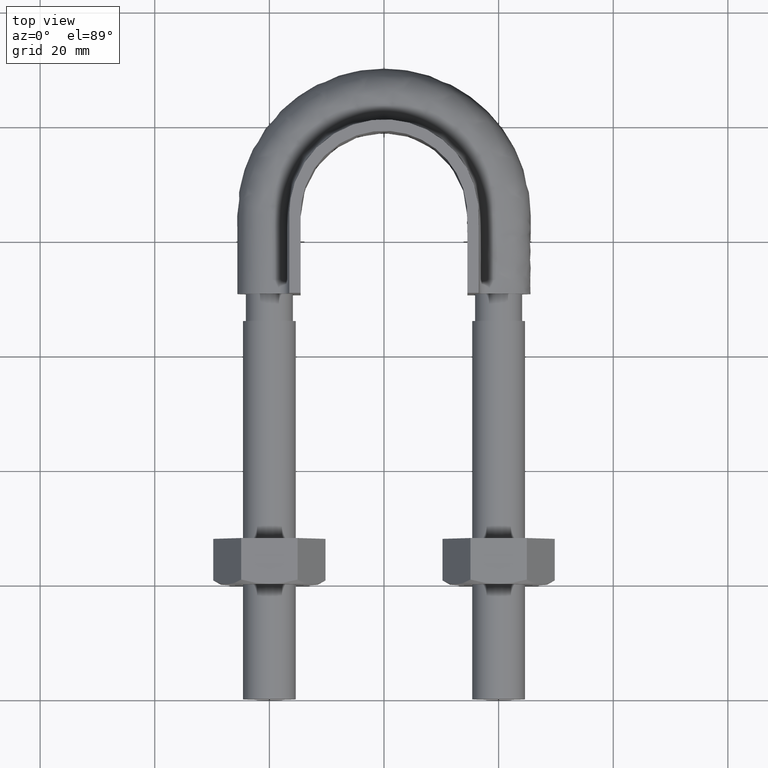
[diagram: clean part render]
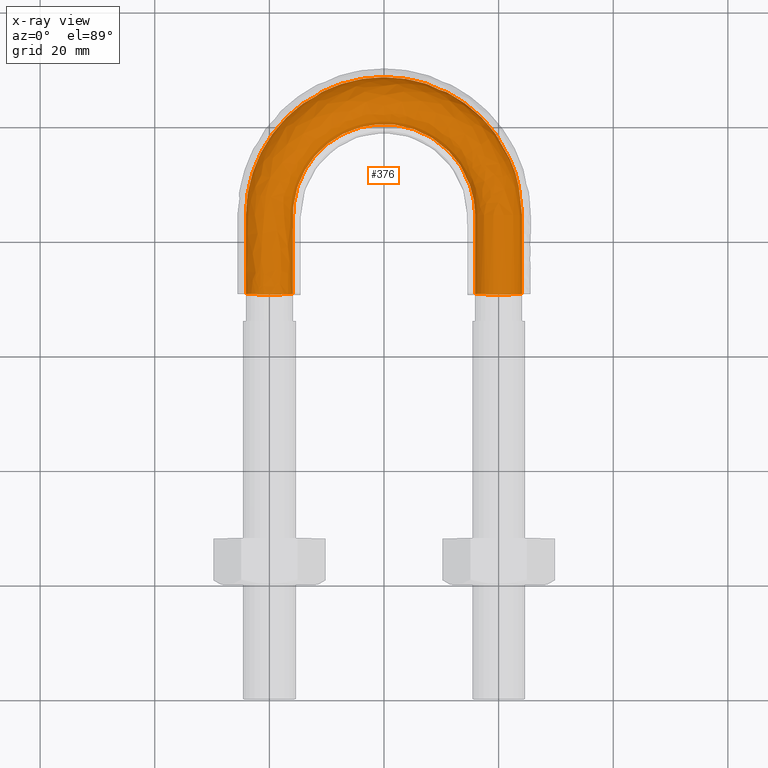
[diagram: x-ray — body ghosted, one internal face saturated and labeled with its STEP entity id]
A machine part, top view, then the same camera in x-ray: the body is ghosted and one INTERNAL B-rep face — a face not visible from any outside direction — is saturated and labeled: STEP entity #376.
In plain terms, the highlighted face is a freeform B-spline surface patch.
Its self-contained STEP definition (entity closure, byte-faithful):
#376 = ADVANCED_FACE( '', ( #468, #469 ), #470, .T. );
#468 = FACE_OUTER_BOUND( '', #1287, .T. );
#469 = FACE_OUTER_BOUND( '', #1288, .T. );
#470 = B_SPLINE_SURFACE_WITH_KNOTS( '', 3, 3, ( ( #1289, #1290, #1291, #1292, #1293, #1294, #1295, #1296, #1297, #1298, #1299, #1300, #1301, #1302, #1303, #1304 ), ( #1305, #1306, #1307, #1308, #1309, #1310, #1311, #1312, #1313, #1314, #1315, #1316, #1317, #1318, #1319, #1320 ), ( #1321, #1322, #1323, #1324, #1325, #1326, #1327, #1328, #1329, #1330, #1331, #1332, #1333, #1334, #1335, #1336 ), ( #1337, #1338, #1339, #1340, #1341, #1342, #1343, #1344, #1345, #1346, #1347, #1348, #1349, #1350, #1351, #1352 ), ( #1353, #1354, #1355, #1356, #1357, #1358, #1359, #1360, #1361, #1362, #1363, #1364, #1365, #1366, #1367, #1368 ), ( #1369, #1370, #1371, #1372, #1373, #1374, #1375, #1376, #1377, #1378, #1379, #1380, #1381, #1382, #1383, #1384 ), ( #1385, #1386, #1387, #1388, #1389, #1390, #1391, #1392, #1393, #1394, #1395, #1396, #1397, #1398, #1399, #1400 ), ( #1401, #1402, #1403, #1404, #1405, #1406, #1407, #1408, #1409, #1410, #1411, #1412, #1413, #1414, #1415, #1416 ), ( #1417, #1418, #1419, #1420, #1421, #1422, #1423, #1424, #1425, #1426, #1427, #1428, #1429, #1430, #1431, #1432 ), ( #1433, #1434, #1435, #1436, #1437, #1438, #1439, #1440, #1441, #1442, #1443, #1444, #1445, #1446, #1447, #1448 ) ), .UNSPECIFIED., .T., .F., .F., ( 2, 1, 1, 1, 1, 1, 1, 1, 1, 1, 1, 2 ), ( 4, 3, 1, 1, 1, 1, 1, 1, 3, 4 ), ( -0.285714285714286, -0.142857142857143, 0.000000000000000, 0.142857142857143, 0.285714285714286, 0.428571428571429, 0.571428571428571, 0.714285714285714, 0.857142857142857, 1.00000000000000, 1.14285714285714, 1.28571428571429 ), ( 0.000000000000000, 1.00000000000000, 1.50000000000000, 2.00000000000000, 3.00000000000000, 4.00000000000000, 5.00000000000000, 5.50000000000000, 6.00000000000000, 7.00000000000000 ), .UNSPECIFIED. );
#1287 = EDGE_LOOP( '', ( #1670, #1671, #1672, #1673, #1674, #1675, #1676 ) );
#1288 = EDGE_LOOP( '', ( #1677 ) );
#1289 = CARTESIAN_POINT( '', ( 17.0768231851220, 68.3700000000000, -3.66554778583225 ) );
#1290 = CARTESIAN_POINT( '', ( 17.0768231851220, 73.7366666666667, -3.66554778583225 ) );
#1291 = CARTESIAN_POINT( '', ( 17.0768231851220, 79.1033333333333, -3.66554778583225 ) );
#1292 = CARTESIAN_POINT( '', ( 17.0768231851220, 84.4700000000000, -3.66554778583225 ) );
#1293 = CARTESIAN_POINT( '', ( 17.0768231851220, 86.2458952276886, -3.66554778583225 ) );
#1294 = CARTESIAN_POINT( '', ( 16.4940506041925, 89.8341044421144, -3.66554778583225 ) );
#1295 = CARTESIAN_POINT( '', ( 13.2362336290777, 96.2918023077660, -3.66554778583225 ) );
#1296 = CARTESIAN_POINT( '', ( 5.63524681783561, 101.815829382846, -3.66554778583225 ) );
#1297 = CARTESIAN_POINT( '', ( -5.63524681783558, 101.815829382846, -3.66554778583225 ) );
#1298 = CARTESIAN_POINT( '', ( -13.2362336290776, 96.2918023077660, -3.66554778583225 ) );
#1299 = CARTESIAN_POINT( '', ( -16.4940506041925, 89.8341044421144, -3.66554778583225 ) );
#1300 = CARTESIAN_POINT( '', ( -17.0768231851219, 86.2458952276886, -3.66554778583225 ) );
#1301 = CARTESIAN_POINT( '', ( -17.0768231851219, 84.4700000000000, -3.66554778583225 ) );
#1302 = CARTESIAN_POINT( '', ( -17.0768231851219, 79.1033333333333, -3.66554778583225 ) );
#1303 = CARTESIAN_POINT( '', ( -17.0768231851219, 73.7366666666667, -3.66554778583225 ) );
#1304 = CARTESIAN_POINT( '', ( -17.0768231851220, 68.3700000000000, -3.66554778583225 ) );
#1305 = CARTESIAN_POINT( '', ( 15.3115884074390, 68.3700000000000, 0.000000000000000 ) );
#1306 = CARTESIAN_POINT( '', ( 15.3115884074390, 73.7366666666667, 0.000000000000000 ) );
#1307 = CARTESIAN_POINT( '', ( 15.3115884074390, 79.1033333333333, 0.000000000000000 ) );
#1308 = CARTESIAN_POINT( '', ( 15.3115884074390, 84.4700000000000, 0.000000000000000 ) );
#1309 = CARTESIAN_POINT( '', ( 15.3115884074390, 86.0547087117738, 0.000000000000000 ) );
#1310 = CARTESIAN_POINT( '', ( 14.7874642643519, 89.2825372896657, 0.000000000000000 ) );
#1311 = CARTESIAN_POINT( '', ( 11.8689305787968, 95.0681107389133, 0.000000000000000 ) );
#1312 = CARTESIAN_POINT( '', ( 5.05233195645801, 100.023204727427, 0.000000000000000 ) );
#1313 = CARTESIAN_POINT( '', ( -5.05233195645797, 100.023204727427, 0.000000000000000 ) );
#1314 = CARTESIAN_POINT( '', ( -11.8689305787968, 95.0681107389133, 0.000000000000000 ) );
#1315 = CARTESIAN_POINT( '', ( -14.7874642643519, 89.2825372896658, 0.000000000000000 ) );
#1316 = CARTESIAN_POINT( '', ( -15.3115884074390, 86.0547087117738, 0.000000000000000 ) );
#1317 = CARTESIAN_POINT( '', ( -15.3115884074390, 84.4700000000000, 0.000000000000000 ) );
#1318 = CARTESIAN_POINT( '', ( -15.3115884074390, 79.1033333333333, 0.000000000000000 ) );
#1319 = CARTESIAN_POINT( '', ( -15.3115884074390, 73.7366666666667, 0.000000000000000 ) );
#1320 = CARTESIAN_POINT( '', ( -15.3115884074390, 68.3700000000000, 0.000000000000000 ) );
#1321 = CARTESIAN_POINT( '', ( 17.0768231851220, 68.3700000000000, 3.66554778583225 ) );
#1322 = CARTESIAN_POINT( '', ( 17.0768231851220, 73.7366666666667, 3.66554778583225 ) );
#1323 = CARTESIAN_POINT( '', ( 17.0768231851220, 79.1033333333333, 3.66554778583225 ) );
#1324 = CARTESIAN_POINT( '', ( 17.0768231851220, 84.4700000000000, 3.66554778583225 ) );
#1325 = CARTESIAN_POINT( '', ( 17.0768231851220, 86.2458952276886, 3.66554778583225 ) );
#1326 = CARTESIAN_POINT( '', ( 16.4940506041925, 89.8341044421144, 3.66554778583225 ) );
#1327 = CARTESIAN_POINT( '', ( 13.2362336290777, 96.2918023077660, 3.66554778583225 ) );
#1328 = CARTESIAN_POINT( '', ( 5.63524681783561, 101.815829382846, 3.66554778583225 ) );
#1329 = CARTESIAN_POINT( '', ( -5.63524681783557, 101.815829382846, 3.66554778583225 ) );
#1330 = CARTESIAN_POINT( '', ( -13.2362336290776, 96.2918023077660, 3.66554778583224 ) );
#1331 = CARTESIAN_POINT( '', ( -16.4940506041925, 89.8341044421144, 3.66554778583225 ) );
#1332 = CARTESIAN_POINT( '', ( -17.0768231851219, 86.2458952276887, 3.66554778583225 ) );
#1333 = CARTESIAN_POINT( '', ( -17.0768231851219, 84.4700000000000, 3.66554778583225 ) );
#1334 = CARTESIAN_POINT( '', ( -17.0768231851219, 79.1033333333333, 3.66554778583225 ) );
#1335 = CARTESIAN_POINT( '', ( -17.0768231851219, 73.7366666666667, 3.66554778583225 ) );
#1336 = CARTESIAN_POINT( '', ( -17.0768231851220, 68.3700000000000, 3.66554778583225 ) );
#1337 = CARTESIAN_POINT( '', ( 21.0432697263483, 68.3700000000000, 4.57086332538454 ) );
#1338 = CARTESIAN_POINT( '', ( 21.0432697263483, 73.7366666666667, 4.57086332538454 ) );
#1339 = CARTESIAN_POINT( '', ( 21.0432697263483, 79.1033333333333, 4.57086332538454 ) );
#1340 = CARTESIAN_POINT( '', ( 21.0432697263483, 84.4700000000000, 4.57086332538454 ) );
#1341 = CARTESIAN_POINT( '', ( 21.0432697263483, 86.6754874294551, 4.57086332538454 ) );
#1342 = CARTESIAN_POINT( '', ( 20.3287153017971, 91.0734645837471, 4.57086332538454 ) );
#1343 = CARTESIAN_POINT( '', ( 16.3085356951593, 99.0414123042191, 4.57086332538453 ) );
#1344 = CARTESIAN_POINT( '', ( 6.94504462205489, 105.843820420695, 4.57086332538454 ) );
#1345 = CARTESIAN_POINT( '', ( -6.94504462205484, 105.843820420695, 4.57086332538454 ) );
#1346 = CARTESIAN_POINT( '', ( -16.3085356951593, 99.0414123042191, 4.57086332538453 ) );
#1347 = CARTESIAN_POINT( '', ( -20.3287153017971, 91.0734645837471, 4.57086332538453 ) );
#1348 = CARTESIAN_POINT( '', ( -21.0432697263483, 86.6754874294551, 4.57086332538454 ) );
#1349 = CARTESIAN_POINT( '', ( -21.0432697263483, 84.4700000000000, 4.57086332538454 ) );
#1350 = CARTESIAN_POINT( '', ( -21.0432697263483, 79.1033333333333, 4.57086332538454 ) );
#1351 = CARTESIAN_POINT( '', ( -21.0432697263483, 73.7366666666667, 4.57086332538454 ) );
#1352 = CARTESIAN_POINT( '', ( -21.0432697263483, 68.3700000000000, 4.57086332538454 ) );
#1353 = CARTESIAN_POINT( '', ( 24.2241128848103, 68.3700000000000, 2.03422555230246 ) );
#1354 = CARTESIAN_POINT( '', ( 24.2241128848103, 73.7366666666667, 2.03422555230246 ) );
#1355 = CARTESIAN_POINT( '', ( 24.2241128848103, 79.1033333333333, 2.03422555230246 ) );
#1356 = CARTESIAN_POINT( '', ( 24.2241128848103, 84.4700000000000, 2.03422555230246 ) );
#1357 = CARTESIAN_POINT( '', ( 24.2241128848103, 87.0199936270591, 2.03422555230246 ) );
#1358 = CARTESIAN_POINT( '', ( 23.4038776269649, 92.0673542495747, 2.03422555230247 ) );
#1359 = CARTESIAN_POINT( '', ( 18.7723306577414, 101.246428319121, 2.03422555230246 ) );
#1360 = CARTESIAN_POINT( '', ( 7.99542090753265, 109.074018433430, 2.03422555230246 ) );
#1361 = CARTESIAN_POINT( '', ( -7.99542090753259, 109.074018433430, 2.03422555230247 ) );
#1362 = CARTESIAN_POINT( '', ( -18.7723306577414, 101.246428319121, 2.03422555230246 ) );
#1363 = CARTESIAN_POINT( '', ( -23.4038776269648, 92.0673542495748, 2.03422555230246 ) );
#1364 = CARTESIAN_POINT( '', ( -24.2241128848102, 87.0199936270591, 2.03422555230246 ) );
#1365 = CARTESIAN_POINT( '', ( -24.2241128848102, 84.4700000000000, 2.03422555230246 ) );
#1366 = CARTESIAN_POINT( '', ( -24.2241128848102, 79.1033333333333, 2.03422555230246 ) );
#1367 = CARTESIAN_POINT( '', ( -24.2241128848102, 73.7366666666667, 2.03422555230246 ) );
#1368 = CARTESIAN_POINT( '', ( -24.2241128848102, 68.3700000000000, 2.03422555230246 ) );
#1369 = CARTESIAN_POINT( '', ( 24.2241128848103, 68.3700000000000, -2.03422555230246 ) );
#1370 = CARTESIAN_POINT( '', ( 24.2241128848103, 73.7366666666667, -2.03422555230246 ) );
#1371 = CARTESIAN_POINT( '', ( 24.2241128848103, 79.1033333333333, -2.03422555230246 ) );
#1372 = CARTESIAN_POINT( '', ( 24.2241128848103, 84.4700000000000, -2.03422555230246 ) );
#1373 = CARTESIAN_POINT( '', ( 24.2241128848103, 87.0199936270591, -2.03422555230246 ) );
#1374 = CARTESIAN_POINT( '', ( 23.4038776269649, 92.0673542495747, -2.03422555230246 ) );
#1375 = CARTESIAN_POINT( '', ( 18.7723306577414, 101.246428319121, -2.03422555230246 ) );
#1376 = CARTESIAN_POINT( '', ( 7.99542090753264, 109.074018433430, -2.03422555230246 ) );
#1377 = CARTESIAN_POINT( '', ( -7.99542090753260, 109.074018433430, -2.03422555230246 ) );
#1378 = CARTESIAN_POINT( '', ( -18.7723306577414, 101.246428319121, -2.03422555230246 ) );
#1379 = CARTESIAN_POINT( '', ( -23.4038776269649, 92.0673542495748, -2.03422555230246 ) );
#1380 = CARTESIAN_POINT( '', ( -24.2241128848102, 87.0199936270591, -2.03422555230246 ) );
#1381 = CARTESIAN_POINT( '', ( -24.2241128848102, 84.4700000000000, -2.03422555230246 ) );
#1382 = CARTESIAN_POINT( '', ( -24.2241128848102, 79.1033333333333, -2.03422555230246 ) );
#1383 = CARTESIAN_POINT( '', ( -24.2241128848102, 73.7366666666667, -2.03422555230246 ) );
#1384 = CARTESIAN_POINT( '', ( -24.2241128848102, 68.3700000000000, -2.03422555230246 ) );
#1385 = CARTESIAN_POINT( '', ( 21.0432697263483, 68.3700000000000, -4.57086332538454 ) );
#1386 = CARTESIAN_POINT( '', ( 21.0432697263483, 73.7366666666667, -4.57086332538454 ) );
#1387 = CARTESIAN_POINT( '', ( 21.0432697263483, 79.1033333333333, -4.57086332538454 ) );
#1388 = CARTESIAN_POINT( '', ( 21.0432697263483, 84.4700000000000, -4.57086332538454 ) );
#1389 = CARTESIAN_POINT( '', ( 21.0432697263483, 86.6754874294551, -4.57086332538454 ) );
#1390 = CARTESIAN_POINT( '', ( 20.3287153017971, 91.0734645837471, -4.57086332538454 ) );
#1391 = CARTESIAN_POINT( '', ( 16.3085356951593, 99.0414123042191, -4.57086332538453 ) );
#1392 = CARTESIAN_POINT( '', ( 6.94504462205489, 105.843820420695, -4.57086332538454 ) );
#1393 = CARTESIAN_POINT( '', ( -6.94504462205485, 105.843820420695, -4.57086332538454 ) );
#1394 = CARTESIAN_POINT( '', ( -16.3085356951593, 99.0414123042191, -4.57086332538453 ) );
#1395 = CARTESIAN_POINT( '', ( -20.3287153017971, 91.0734645837471, -4.57086332538454 ) );
#1396 = CARTESIAN_POINT( '', ( -21.0432697263483, 86.6754874294551, -4.57086332538454 ) );
#1397 = CARTESIAN_POINT( '', ( -21.0432697263483, 84.4700000000000, -4.57086332538454 ) );
#1398 = CARTESIAN_POINT( '', ( -21.0432697263483, 79.1033333333333, -4.57086332538454 ) );
#1399 = CARTESIAN_POINT( '', ( -21.0432697263483, 73.7366666666667, -4.57086332538454 ) );
#1400 = CARTESIAN_POINT( '', ( -21.0432697263483, 68.3700000000000, -4.57086332538454 ) );
#1401 = CARTESIAN_POINT( '', ( 17.0768231851220, 68.3700000000000, -3.66554778583225 ) );
#1402 = CARTESIAN_POINT( '', ( 17.0768231851220, 73.7366666666667, -3.66554778583225 ) );
#1403 = CARTESIAN_POINT( '', ( 17.0768231851220, 79.1033333333333, -3.66554778583225 ) );
#1404 = CARTESIAN_POINT( '', ( 17.0768231851220, 84.4700000000000, -3.66554778583225 ) );
#1405 = CARTESIAN_POINT( '', ( 17.0768231851220, 86.2458952276886, -3.66554778583225 ) );
#1406 = CARTESIAN_POINT( '', ( 16.4940506041925, 89.8341044421144, -3.66554778583225 ) );
#1407 = CARTESIAN_POINT( '', ( 13.2362336290777, 96.2918023077660, -3.66554778583225 ) );
#1408 = CARTESIAN_POINT( '', ( 5.63524681783561, 101.815829382846, -3.66554778583225 ) );
#1409 = CARTESIAN_POINT( '', ( -5.63524681783558, 101.815829382846, -3.66554778583225 ) );
#1410 = CARTESIAN_POINT( '', ( -13.2362336290776, 96.2918023077660, -3.66554778583225 ) );
#1411 = CARTESIAN_POINT( '', ( -16.4940506041925, 89.8341044421144, -3.66554778583225 ) );
#1412 = CARTESIAN_POINT( '', ( -17.0768231851219, 86.2458952276886, -3.66554778583225 ) );
#1413 = CARTESIAN_POINT( '', ( -17.0768231851219, 84.4700000000000, -3.66554778583225 ) );
#1414 = CARTESIAN_POINT( '', ( -17.0768231851219, 79.1033333333333, -3.66554778583225 ) );
#1415 = CARTESIAN_POINT( '', ( -17.0768231851219, 73.7366666666667, -3.66554778583225 ) );
#1416 = CARTESIAN_POINT( '', ( -17.0768231851220, 68.3700000000000, -3.66554778583225 ) );
#1417 = CARTESIAN_POINT( '', ( 15.3115884074390, 68.3700000000000, 0.000000000000000 ) );
#1418 = CARTESIAN_POINT( '', ( 15.3115884074390, 73.7366666666667, 0.000000000000000 ) );
#1419 = CARTESIAN_POINT( '', ( 15.3115884074390, 79.1033333333333, 0.000000000000000 ) );
#1420 = CARTESIAN_POINT( '', ( 15.3115884074390, 84.4700000000000, 0.000000000000000 ) );
#1421 = CARTESIAN_POINT( '', ( 15.3115884074390, 86.0547087117738, 0.000000000000000 ) );
#1422 = CARTESIAN_POINT( '', ( 14.7874642643519, 89.2825372896657, 0.000000000000000 ) );
#1423 = CARTESIAN_POINT( '', ( 11.8689305787968, 95.0681107389133, 0.000000000000000 ) );
#1424 = CARTESIAN_POINT( '', ( 5.05233195645801, 100.023204727427, 0.000000000000000 ) );
#1425 = CARTESIAN_POINT( '', ( -5.05233195645797, 100.023204727427, 0.000000000000000 ) );
#1426 = CARTESIAN_POINT( '', ( -11.8689305787968, 95.0681107389133, 0.000000000000000 ) );
#1427 = CARTESIAN_POINT( '', ( -14.7874642643519, 89.2825372896658, 0.000000000000000 ) );
#1428 = CARTESIAN_POINT( '', ( -15.3115884074390, 86.0547087117738, 0.000000000000000 ) );
#1429 = CARTESIAN_POINT( '', ( -15.3115884074390, 84.4700000000000, 0.000000000000000 ) );
#1430 = CARTESIAN_POINT( '', ( -15.3115884074390, 79.1033333333333, 0.000000000000000 ) );
#1431 = CARTESIAN_POINT( '', ( -15.3115884074390, 73.7366666666667, 0.000000000000000 ) );
#1432 = CARTESIAN_POINT( '', ( -15.3115884074390, 68.3700000000000, 0.000000000000000 ) );
#1433 = CARTESIAN_POINT( '', ( 17.0768231851220, 68.3700000000000, 3.66554778583225 ) );
#1434 = CARTESIAN_POINT( '', ( 17.0768231851220, 73.7366666666667, 3.66554778583225 ) );
#1435 = CARTESIAN_POINT( '', ( 17.0768231851220, 79.1033333333333, 3.66554778583225 ) );
#1436 = CARTESIAN_POINT( '', ( 17.0768231851220, 84.4700000000000, 3.66554778583225 ) );
#1437 = CARTESIAN_POINT( '', ( 17.0768231851220, 86.2458952276886, 3.66554778583225 ) );
#1438 = CARTESIAN_POINT( '', ( 16.4940506041925, 89.8341044421144, 3.66554778583225 ) );
#1439 = CARTESIAN_POINT( '', ( 13.2362336290777, 96.2918023077660, 3.66554778583225 ) );
#1440 = CARTESIAN_POINT( '', ( 5.63524681783561, 101.815829382846, 3.66554778583225 ) );
#1441 = CARTESIAN_POINT( '', ( -5.63524681783557, 101.815829382846, 3.66554778583225 ) );
#1442 = CARTESIAN_POINT( '', ( -13.2362336290776, 96.2918023077660, 3.66554778583224 ) );
#1443 = CARTESIAN_POINT( '', ( -16.4940506041925, 89.8341044421144, 3.66554778583225 ) );
#1444 = CARTESIAN_POINT( '', ( -17.0768231851219, 86.2458952276887, 3.66554778583225 ) );
#1445 = CARTESIAN_POINT( '', ( -17.0768231851219, 84.4700000000000, 3.66554778583225 ) );
#1446 = CARTESIAN_POINT( '', ( -17.0768231851219, 79.1033333333333, 3.66554778583225 ) );
#1447 = CARTESIAN_POINT( '', ( -17.0768231851219, 73.7366666666667, 3.66554778583225 ) );
#1448 = CARTESIAN_POINT( '', ( -17.0768231851220, 68.3700000000000, 3.66554778583225 ) );
#1670 = ORIENTED_EDGE( '', *, *, #2099, .T. );
#1671 = ORIENTED_EDGE( '', *, *, #2109, .T. );
#1672 = ORIENTED_EDGE( '', *, *, #2110, .T. );
#1673 = ORIENTED_EDGE( '', *, *, #2111, .T. );
#1674 = ORIENTED_EDGE( '', *, *, #2112, .T. );
#1675 = ORIENTED_EDGE( '', *, *, #2113, .T. );
#1676 = ORIENTED_EDGE( '', *, *, #2108, .T. );
#1677 = ORIENTED_EDGE( '', *, *, #2114, .T. );
#2099 = EDGE_CURVE( '', #2251, #2252, #2253, .T. );
#2108 = EDGE_CURVE( '', #2255, #2251, #2268, .T. );
#2109 = EDGE_CURVE( '', #2252, #2263, #2269, .T. );
#2110 = EDGE_CURVE( '', #2263, #2261, #2270, .T. );
#2111 = EDGE_CURVE( '', #2261, #2259, #2271, .T. );
#2112 = EDGE_CURVE( '', #2259, #2257, #2272, .T. );
#2113 = EDGE_CURVE( '', #2257, #2255, #2273, .T. );
#2114 = EDGE_CURVE( '', #2274, #2274, #2275, .T. );
#2251 = VERTEX_POINT( '', #2628 );
#2252 = VERTEX_POINT( '', #2629 );
#2253 = B_SPLINE_CURVE_WITH_KNOTS( '', 3, ( #2630, #2631, #2632, #2633 ), .UNSPECIFIED., .F., .F., ( 4, 4 ), ( 0.000000000000000, 0.00365969768494572 ), .UNSPECIFIED. );
#2255 = VERTEX_POINT( '', #2635 );
#2257 = VERTEX_POINT( '', #2637 );
#2259 = VERTEX_POINT( '', #2639 );
#2261 = VERTEX_POINT( '', #2641 );
#2263 = VERTEX_POINT( '', #2643 );
#2268 = B_SPLINE_CURVE_WITH_KNOTS( '', 3, ( #2648, #2649, #2650, #2651 ), .UNSPECIFIED., .F., .F., ( 4, 4 ), ( 0.0219456464543833, 0.0255944202292314 ), .UNSPECIFIED. );
#2269 = B_SPLINE_CURVE_WITH_KNOTS( '', 3, ( #2652, #2653, #2654, #2655 ), .UNSPECIFIED., .F., .F., ( 4, 4 ), ( 0.00365969768494572, 0.00731437302338656 ), .UNSPECIFIED. );
#2270 = B_SPLINE_CURVE_WITH_KNOTS( '', 3, ( #2656, #2657, #2658, #2659 ), .UNSPECIFIED., .F., .F., ( 4, 4 ), ( 0.00731437302338656, 0.0109748044148777 ), .UNSPECIFIED. );
#2271 = B_SPLINE_CURVE_WITH_KNOTS( '', 3, ( #2660, #2661, #2662, #2663 ), .UNSPECIFIED., .F., .F., ( 4, 4 ), ( 0.0109748044148777, 0.0146317467085368 ), .UNSPECIFIED. );
#2272 = B_SPLINE_CURVE_WITH_KNOTS( '', 3, ( #2664, #2665, #2666, #2667 ), .UNSPECIFIED., .F., .F., ( 4, 4 ), ( 0.0146317467085368, 0.0182856759681435 ), .UNSPECIFIED. );
#2273 = B_SPLINE_CURVE_WITH_KNOTS( '', 3, ( #2668, #2669, #2670, #2671 ), .UNSPECIFIED., .F., .F., ( 4, 4 ), ( 0.0182856759681435, 0.0219456464543833 ), .UNSPECIFIED. );
#2274 = VERTEX_POINT( '', #2672 );
#2275 = B_SPLINE_CURVE_WITH_KNOTS( '', 3, ( #2673, #2674, #2675, #2676, #2677, #2678, #2679, #2680, #2681, #2682 ), .UNSPECIFIED., .T., .F., ( 4, 1, 1, 1, 1, 1, 1, 4 ), ( 0.000000000000000, 0.00365634574703306, 0.00731269149406611, 0.0109690372410992, 0.0146253829881322, 0.0182817287351653, 0.0219380744821983, 0.0255944202292314 ), .UNSPECIFIED. );
#2628 = CARTESIAN_POINT( '', ( -15.9000000000000, 70.7200000000000, 4.33680868994202E-016 ) );
#2629 = CARTESIAN_POINT( '', ( -17.4436918123792, 70.7200000000000, -3.20550907811894 ) );
#2630 = CARTESIAN_POINT( '', ( -15.9000000000000, 70.7200000000000, -5.85469173142172E-015 ) );
#2631 = CARTESIAN_POINT( '', ( -15.9000000000000, 70.7200000000000, -1.22184926194409 ) );
#2632 = CARTESIAN_POINT( '', ( -16.4884115925610, 70.7200000000000, -2.44369852388818 ) );
#2633 = CARTESIAN_POINT( '', ( -17.4436918123792, 70.7200000000000, -3.20550907811893 ) );
#2635 = CARTESIAN_POINT( '', ( -17.4436918123816, 70.7200000000000, 3.20550907812084 ) );
#2637 = CARTESIAN_POINT( '', ( -20.9123358292213, 70.7200000000000, 3.99720443994539 ) );
#2639 = CARTESIAN_POINT( '', ( -23.6939723584000, 70.7200000000000, 1.77892333038186 ) );
#2641 = CARTESIAN_POINT( '', ( -23.6939723583999, 70.7200000000000, -1.77892333038200 ) );
#2643 = CARTESIAN_POINT( '', ( -20.9123358292209, 70.7200000000000, -3.99720443994546 ) );
#2648 = CARTESIAN_POINT( '', ( -17.4436918123816, 70.7200000000000, 3.20550907812084 ) );
#2649 = CARTESIAN_POINT( '', ( -16.4884115925620, 70.7200000000000, 2.44369852389022 ) );
#2650 = CARTESIAN_POINT( '', ( -15.9000000000000, 70.7200000000000, 1.22184926194511 ) );
#2651 = CARTESIAN_POINT( '', ( -15.9000000000000, 70.7200000000000, 4.33680868994202E-016 ) );
#2652 = CARTESIAN_POINT( '', ( -17.4436918123792, 70.7200000000000, -3.20550907811895 ) );
#2653 = CARTESIAN_POINT( '', ( -18.3989720321974, 70.7200000000000, -3.96731963234970 ) );
#2654 = CARTESIAN_POINT( '', ( -19.7211208792729, 70.7200000000000, -4.26909147886712 ) );
#2655 = CARTESIAN_POINT( '', ( -20.9123358292209, 70.7200000000000, -3.99720443994546 ) );
#2656 = CARTESIAN_POINT( '', ( -20.9123358292209, 70.7200000000000, -3.99720443994546 ) );
#2657 = CARTESIAN_POINT( '', ( -22.1035507791690, 70.7200000000000, -3.72531740102382 ) );
#2658 = CARTESIAN_POINT( '', ( -23.1638318319896, 70.7200000000000, -2.87977147666314 ) );
#2659 = CARTESIAN_POINT( '', ( -23.6939723583999, 70.7200000000000, -1.77892333038200 ) );
#2660 = CARTESIAN_POINT( '', ( -23.6939723583999, 70.7200000000000, -1.77892333038205 ) );
#2661 = CARTESIAN_POINT( '', ( -24.2241128848102, 70.7200000000000, -0.678075184100904 ) );
#2662 = CARTESIAN_POINT( '', ( -24.2241128848102, 70.7200000000000, 0.678075184100707 ) );
#2663 = CARTESIAN_POINT( '', ( -23.6939723584000, 70.7200000000000, 1.77892333038185 ) );
#2664 = CARTESIAN_POINT( '', ( -23.6939723584000, 70.7200000000000, 1.77892333038172 ) );
#2665 = CARTESIAN_POINT( '', ( -23.1638318319898, 70.7200000000000, 2.87977147666292 ) );
#2666 = CARTESIAN_POINT( '', ( -22.1035507791692, 70.7200000000000, 3.72531740102365 ) );
#2667 = CARTESIAN_POINT( '', ( -20.9123358292213, 70.7200000000000, 3.99720443994539 ) );
#2668 = CARTESIAN_POINT( '', ( -20.9123358292223, 70.7200000000000, 3.99720443994510 ) );
#2669 = CARTESIAN_POINT( '', ( -19.7211208792747, 70.7200000000000, 4.26909147886707 ) );
#2670 = CARTESIAN_POINT( '', ( -18.3989720321997, 70.7200000000000, 3.96731963235027 ) );
#2671 = CARTESIAN_POINT( '', ( -17.4436918123816, 70.7200000000000, 3.20550907812084 ) );
#2672 = CARTESIAN_POINT( '', ( 15.9000000000000, 70.7200000000000, 4.33680868994202E-016 ) );
#2673 = CARTESIAN_POINT( '', ( 15.9000000000000, 70.7200000000000, 3.25260651745651E-016 ) );
#2674 = CARTESIAN_POINT( '', ( 15.9000000000000, 70.7200000000000, 1.22184926194408 ) );
#2675 = CARTESIAN_POINT( '', ( 17.0768231851220, 70.7200000000000, 3.66554778583225 ) );
#2676 = CARTESIAN_POINT( '', ( 21.0432697263483, 70.7200000000000, 4.57086332538454 ) );
#2677 = CARTESIAN_POINT( '', ( 24.2241128848103, 70.7200000000000, 2.03422555230246 ) );
#2678 = CARTESIAN_POINT( '', ( 24.2241128848103, 70.7200000000000, -2.03422555230246 ) );
#2679 = CARTESIAN_POINT( '', ( 21.0432697263483, 70.7200000000000, -4.57086332538454 ) );
#2680 = CARTESIAN_POINT( '', ( 17.0768231851220, 70.7200000000000, -3.66554778583225 ) );
#2681 = CARTESIAN_POINT( '', ( 15.9000000000000, 70.7200000000000, -1.22184926194408 ) );
#2682 = CARTESIAN_POINT( '', ( 15.9000000000000, 70.7200000000000, 3.25260651745651E-016 ) );